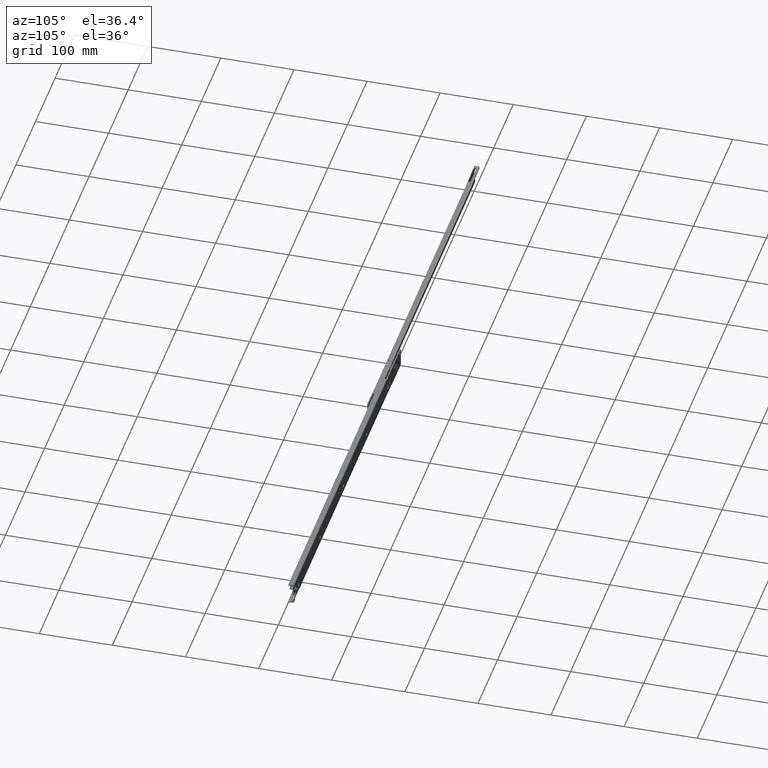
[diagram: clean part render]
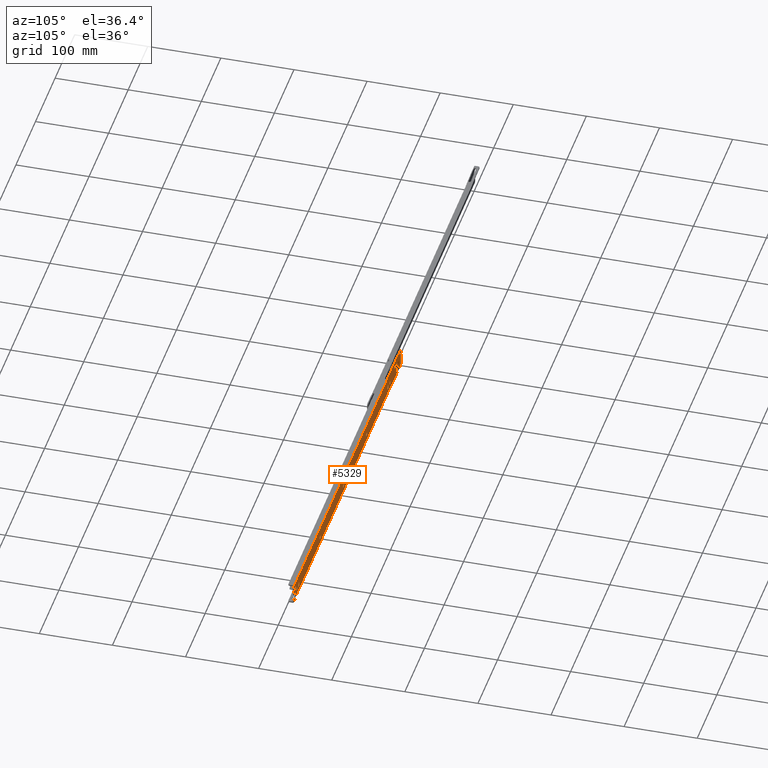
[diagram: same view with one face highlighted and labeled with its STEP entity id]
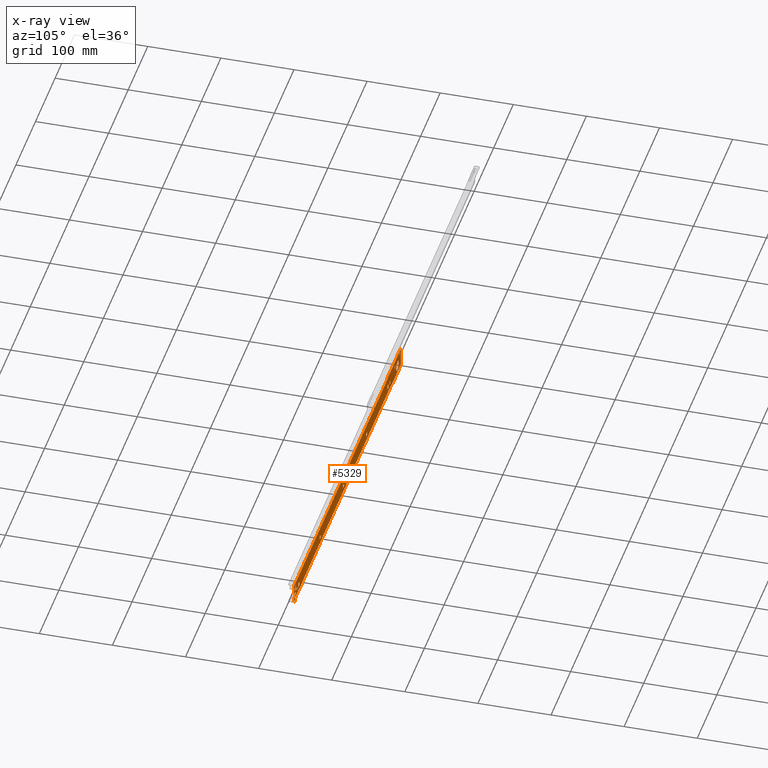
[diagram: x-ray of the same camera — body ghosted, the highlighted face saturated]
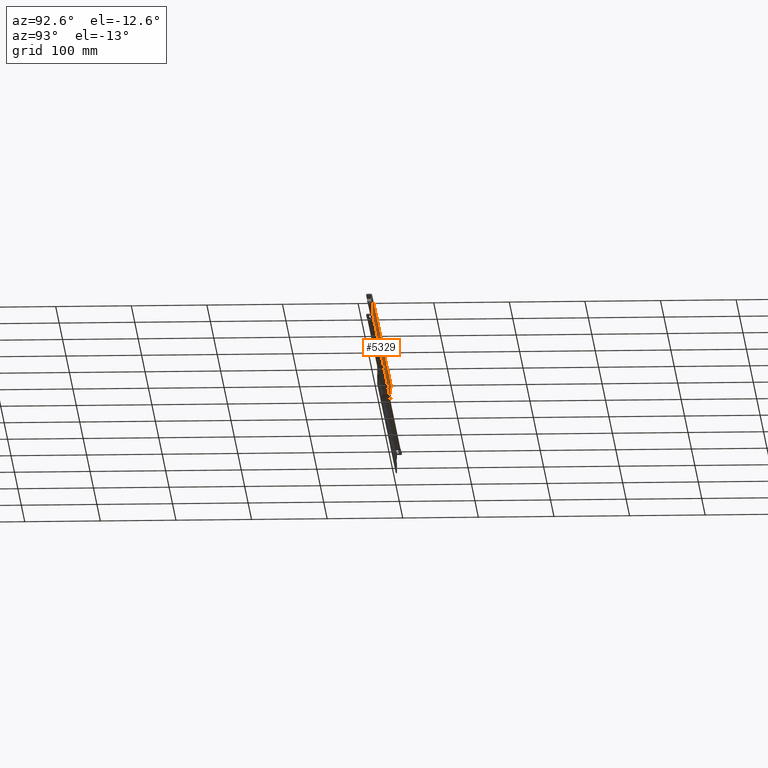
[diagram: same view with one face highlighted and labeled with its STEP entity id]
A machine part, auxiliary view. The second image highlights one B-rep face of the part: STEP entity #5329.
The next image is the same camera in x-ray: the body ghosted, the highlighted face saturated — about 0% of this face is hidden behind the body in this view.
A second angle (auxiliary view) of the same face is appended — the face is thin or edge-on in the first view.
In plain terms, the highlighted face is a freeform B-spline surface patch.
Its self-contained STEP definition (entity closure, byte-faithful):
#721=CARTESIAN_POINT('',(364.618561086811610,12.499999999983149,11.202092794943010));
#722=VERTEX_POINT('',#721);
#723=CARTESIAN_POINT('',(367.0,12.500000000000000,9.100000000000000));
#724=VERTEX_POINT('',#723);
#725=CARTESIAN_POINT('',(364.618561086811610,12.499999999983151,11.202092794943010));
#726=CARTESIAN_POINT('',(364.881523359753260,12.500000000000000,9.100000000000000));
#727=CARTESIAN_POINT('',(367.0,12.500000000000000,9.100000000000000));
#735=(BOUNDED_CURVE()B_SPLINE_CURVE(2,(#725,#726,#727),.UNSPECIFIED.,.F.,.U.)B_SPLINE_CURVE_WITH_KNOTS((3,3),(0.271473928979697,0.500000000000000),.UNSPECIFIED.)CURVE()GEOMETRIC_REPRESENTATION_ITEM()RATIONAL_B_SPLINE_CURVE((0.954005430257261,0.732265053904287,1.0))REPRESENTATION_ITEM(''));
#736=EDGE_CURVE('',#722,#724,#735,.T.);
#777=CARTESIAN_POINT('',(369.399908617294270,12.499999997686860,11.520943701425679));
#778=VERTEX_POINT('',#777);
#784=CARTESIAN_POINT('',(367.0,12.500000000000000,9.100000000000000));
#785=CARTESIAN_POINT('',(369.399999999999980,12.499999999999998,9.100000000000000));
#786=CARTESIAN_POINT('',(369.399999999999980,12.500000000000000,11.500000000000000));
#787=CARTESIAN_POINT('',(369.399999999999980,12.499999999999998,11.510472058182025));
#788=CARTESIAN_POINT('',(369.399908617294270,12.499999997686869,11.520943701425679));
#796=(BOUNDED_CURVE()B_SPLINE_CURVE(2,(#784,#785,#786,#787,#788),.UNSPECIFIED.,.F.,.U.)B_SPLINE_CURVE_WITH_KNOTS((3,2,3),(0.500000000000000,0.750000000000000,0.751539896714681),.UNSPECIFIED.)CURVE()GEOMETRIC_REPRESENTATION_ITEM()RATIONAL_B_SPLINE_CURVE((1.0,0.707106781186547,1.0,0.998195898778387,0.996414022593128))REPRESENTATION_ITEM(''));
#797=EDGE_CURVE('',#724,#778,#796,.T.);
#824=CARTESIAN_POINT('',(367.0,12.500000000000000,13.900000000000000));
#825=VERTEX_POINT('',#824);
#826=CARTESIAN_POINT('',(367.0,12.500000000000000,13.900000000000000));
#827=CARTESIAN_POINT('',(364.599999999999970,12.499999999999998,13.899999999999997));
#828=CARTESIAN_POINT('',(364.600000000000020,12.500000000000000,11.500000000000000));
#829=CARTESIAN_POINT('',(364.599999999999970,12.499999999999998,11.350468173855360));
#830=CARTESIAN_POINT('',(364.618561086811610,12.499999999983149,11.202092794943010));
#838=(BOUNDED_CURVE()B_SPLINE_CURVE(2,(#826,#827,#828,#829,#830),.UNSPECIFIED.,.F.,.U.)B_SPLINE_CURVE_WITH_KNOTS((3,2,3),(0.0,0.250000000000000,0.271473928979697),.UNSPECIFIED.)CURVE()GEOMETRIC_REPRESENTATION_ITEM()RATIONAL_B_SPLINE_CURVE((1.0,0.707106781186547,1.0,0.974841727282260,0.954005430257261))REPRESENTATION_ITEM(''));
#839=EDGE_CURVE('',#825,#722,#838,.T.);
#841=CARTESIAN_POINT('',(369.399908617294270,12.499999997686869,11.520943701425679));
#842=CARTESIAN_POINT('',(369.379146873284410,12.500000000000000,13.899999999999999));
#843=CARTESIAN_POINT('',(367.0,12.500000000000000,13.900000000000000));
#851=(BOUNDED_CURVE()B_SPLINE_CURVE(2,(#841,#842,#843),.UNSPECIFIED.,.F.,.U.)B_SPLINE_CURVE_WITH_KNOTS((3,3),(0.751539896714681,1.0),.UNSPECIFIED.)CURVE()GEOMETRIC_REPRESENTATION_ITEM()RATIONAL_B_SPLINE_CURVE((0.996414022593128,0.708910882408160,1.0))REPRESENTATION_ITEM(''));
#852=EDGE_CURVE('',#778,#825,#851,.T.);
#907=CARTESIAN_POINT('',(246.118561086811610,12.499999999983149,11.202092794943010));
#908=VERTEX_POINT('',#907);
#909=CARTESIAN_POINT('',(248.500000000000000,12.500000000000000,9.100000000000000));
#910=VERTEX_POINT('',#909);
#911=CARTESIAN_POINT('',(246.118561086811580,12.499999999983155,11.202092794943013));
#912=CARTESIAN_POINT('',(246.381523359753460,12.500000000000000,9.100000000000000));
#913=CARTESIAN_POINT('',(248.500000000000000,12.500000000000000,9.100000000000000));
#921=(BOUNDED_CURVE()B_SPLINE_CURVE(2,(#911,#912,#913),.UNSPECIFIED.,.F.,.U.)B_SPLINE_CURVE_WITH_KNOTS((3,3),(0.271473928979697,0.500000000000000),.UNSPECIFIED.)CURVE()GEOMETRIC_REPRESENTATION_ITEM()RATIONAL_B_SPLINE_CURVE((0.954005430257262,0.732265053904287,1.0))REPRESENTATION_ITEM(''));
#922=EDGE_CURVE('',#908,#910,#921,.T.);
#963=CARTESIAN_POINT('',(250.899908617294300,12.499999997686871,11.520943701425679));
#964=VERTEX_POINT('',#963);
#970=CARTESIAN_POINT('',(248.500000000000000,12.500000000000000,9.100000000000000));
#971=CARTESIAN_POINT('',(250.900000000000060,12.499999999999998,9.100000000000000));
#972=CARTESIAN_POINT('',(250.900000000000010,12.500000000000000,11.500000000000000));
#973=CARTESIAN_POINT('',(250.900000000000010,12.499999999999998,11.510472058182025));
#974=CARTESIAN_POINT('',(250.899908617294240,12.499999997686878,11.520943701425679));
#982=(BOUNDED_CURVE()B_SPLINE_CURVE(2,(#970,#971,#972,#973,#974),.UNSPECIFIED.,.F.,.U.)B_SPLINE_CURVE_WITH_KNOTS((3,2,3),(0.500000000000000,0.750000000000000,0.751539896714681),.UNSPECIFIED.)CURVE()GEOMETRIC_REPRESENTATION_ITEM()RATIONAL_B_SPLINE_CURVE((1.0,0.707106781186547,1.0,0.998195898778387,0.996414022593128))REPRESENTATION_ITEM(''));
#983=EDGE_CURVE('',#910,#964,#982,.T.);
#1010=CARTESIAN_POINT('',(248.500000000000000,12.500000000000000,13.900000000000000));
#1011=VERTEX_POINT('',#1010);
#1012=CARTESIAN_POINT('',(248.500000000000000,12.500000000000000,13.900000000000000));
#1013=CARTESIAN_POINT('',(246.100000000000110,12.499999999999998,13.899999999999997));
#1014=CARTESIAN_POINT('',(246.099999999999990,12.500000000000000,11.500000000000000));
#1015=CARTESIAN_POINT('',(246.099999999999990,12.500000000000005,11.350468173855354));
#1016=CARTESIAN_POINT('',(246.118561086811580,12.499999999983155,11.202092794943013));
#1024=(BOUNDED_CURVE()B_SPLINE_CURVE(2,(#1012,#1013,#1014,#1015,#1016),.UNSPECIFIED.,.F.,.U.)B_SPLINE_CURVE_WITH_KNOTS((3,2,3),(0.0,0.250000000000000,0.271473928979697),.UNSPECIFIED.)CURVE()GEOMETRIC_REPRESENTATION_ITEM()RATIONAL_B_SPLINE_CURVE((1.0,0.707106781186547,1.0,0.974841727282260,0.954005430257262))REPRESENTATION_ITEM(''));
#1025=EDGE_CURVE('',#1011,#908,#1024,.T.);
#1027=CARTESIAN_POINT('',(250.899908617294220,12.499999997686874,11.520943701425685));
#1028=CARTESIAN_POINT('',(250.879146873284410,12.499999999999998,13.899999999999997));
#1029=CARTESIAN_POINT('',(248.500000000000000,12.500000000000000,13.900000000000000));
#1037=(BOUNDED_CURVE()B_SPLINE_CURVE(2,(#1027,#1028,#1029),.UNSPECIFIED.,.F.,.U.)B_SPLINE_CURVE_WITH_KNOTS((3,3),(0.751539896714681,1.0),.UNSPECIFIED.)CURVE()GEOMETRIC_REPRESENTATION_ITEM()RATIONAL_B_SPLINE_CURVE((0.996414022593127,0.708910882408160,1.0))REPRESENTATION_ITEM(''));
#1038=EDGE_CURVE('',#964,#1011,#1037,.T.);
#1093=CARTESIAN_POINT('',(127.618561086811600,12.499999999983160,11.202092794943020));
#1094=VERTEX_POINT('',#1093);
#1095=CARTESIAN_POINT('',(130.0,12.500000000000000,9.100000000000000));
#1096=VERTEX_POINT('',#1095);
#1097=CARTESIAN_POINT('',(127.618561086811680,12.499999999983167,11.202092794943013));
#1098=CARTESIAN_POINT('',(127.881523359753330,12.500000000000000,9.099999999999998));
#1099=CARTESIAN_POINT('',(130.0,12.500000000000000,9.100000000000000));
#1107=(BOUNDED_CURVE()B_SPLINE_CURVE(2,(#1097,#1098,#1099),.UNSPECIFIED.,.F.,.U.)B_SPLINE_CURVE_WITH_KNOTS((3,3),(0.271473928979697,0.500000000000000),.UNSPECIFIED.)CURVE()GEOMETRIC_REPRESENTATION_ITEM()RATIONAL_B_SPLINE_CURVE((0.954005430257262,0.732265053904287,1.0))REPRESENTATION_ITEM(''));
#1108=EDGE_CURVE('',#1094,#1096,#1107,.T.);
#1149=CARTESIAN_POINT('',(132.399908617294300,12.499999997686871,11.520943701425679));
#1150=VERTEX_POINT('',#1149);
#1156=CARTESIAN_POINT('',(130.0,12.500000000000000,9.100000000000000));
#1157=CARTESIAN_POINT('',(132.400000000000010,12.499999999999998,9.100000000000000));
#1158=CARTESIAN_POINT('',(132.400000000000010,12.500000000000000,11.500000000000000));
#1159=CARTESIAN_POINT('',(132.400000000000010,12.499999999999998,11.510472058182025));
#1160=CARTESIAN_POINT('',(132.399908617294270,12.499999997686878,11.520943701425679));
#1168=(BOUNDED_CURVE()B_SPLINE_CURVE(2,(#1156,#1157,#1158,#1159,#1160),.UNSPECIFIED.,.F.,.U.)B_SPLINE_CURVE_WITH_KNOTS((3,2,3),(0.500000000000000,0.750000000000000,0.751539896714681),.UNSPECIFIED.)CURVE()GEOMETRIC_REPRESENTATION_ITEM()RATIONAL_B_SPLINE_CURVE((1.0,0.707106781186547,1.0,0.998195898778387,0.996414022593128))REPRESENTATION_ITEM(''));
#1169=EDGE_CURVE('',#1096,#1150,#1168,.T.);
#1196=CARTESIAN_POINT('',(130.0,12.500000000000000,13.900000000000000));
#1197=VERTEX_POINT('',#1196);
#1198=CARTESIAN_POINT('',(130.0,12.500000000000000,13.900000000000000));
#1199=CARTESIAN_POINT('',(127.599999999999990,12.499999999999998,13.899999999999997));
#1200=CARTESIAN_POINT('',(127.599999999999990,12.500000000000000,11.500000000000000));
#1201=CARTESIAN_POINT('',(127.599999999999950,12.500000000000005,11.350468173855354));
#1202=CARTESIAN_POINT('',(127.618561086811680,12.499999999983167,11.202092794943013));
#1210=(BOUNDED_CURVE()B_SPLINE_CURVE(2,(#1198,#1199,#1200,#1201,#1202),.UNSPECIFIED.,.F.,.U.)B_SPLINE_CURVE_WITH_KNOTS((3,2,3),(0.0,0.250000000000000,0.271473928979697),.UNSPECIFIED.)CURVE()GEOMETRIC_REPRESENTATION_ITEM()RATIONAL_B_SPLINE_CURVE((1.0,0.707106781186547,1.0,0.974841727282260,0.954005430257262))REPRESENTATION_ITEM(''));
#1211=EDGE_CURVE('',#1197,#1094,#1210,.T.);
#1213=CARTESIAN_POINT('',(132.399908617294330,12.499999997686874,11.520943701425685));
#1214=CARTESIAN_POINT('',(132.379146873284380,12.499999999999998,13.899999999999997));
#1215=CARTESIAN_POINT('',(130.0,12.500000000000000,13.900000000000000));
#1223=(BOUNDED_CURVE()B_SPLINE_CURVE(2,(#1213,#1214,#1215),.UNSPECIFIED.,.F.,.U.)B_SPLINE_CURVE_WITH_KNOTS((3,3),(0.751539896714681,1.0),.UNSPECIFIED.)CURVE()GEOMETRIC_REPRESENTATION_ITEM()RATIONAL_B_SPLINE_CURVE((0.996414022593127,0.708910882408160,1.0))REPRESENTATION_ITEM(''));
#1224=EDGE_CURVE('',#1150,#1197,#1223,.T.);
#1681=CARTESIAN_POINT('',(8.618561086811564,12.499999999982940,11.202092794943010));
#1682=VERTEX_POINT('',#1681);
#1683=CARTESIAN_POINT('',(11.0,12.499999999999719,9.100000000000025));
#1684=VERTEX_POINT('',#1683);
#1685=CARTESIAN_POINT('',(8.618561086811564,12.499999999982938,11.202092794943006));
#1686=CARTESIAN_POINT('',(8.881523359753354,12.499999999999718,9.100000000000023));
#1687=CARTESIAN_POINT('',(11.0,12.499999999999719,9.100000000000025));
#1695=(BOUNDED_CURVE()B_SPLINE_CURVE(2,(#1685,#1686,#1687),.UNSPECIFIED.,.F.,.U.)B_SPLINE_CURVE_WITH_KNOTS((3,3),(0.271473928979697,0.500000000000000),.UNSPECIFIED.)CURVE()GEOMETRIC_REPRESENTATION_ITEM()RATIONAL_B_SPLINE_CURVE((0.954005430257261,0.732265053904287,1.0))REPRESENTATION_ITEM(''));
#1696=EDGE_CURVE('',#1682,#1684,#1695,.T.);
#1737=CARTESIAN_POINT('',(13.399908617294310,12.499999997686659,11.520943701425679));
#1738=VERTEX_POINT('',#1737);
#1744=CARTESIAN_POINT('',(11.0,12.499999999999719,9.100000000000025));
#1745=CARTESIAN_POINT('',(13.399999999999975,12.499999999999718,9.100000000000025));
#1746=CARTESIAN_POINT('',(13.399999999999970,12.499999999999719,11.500000000000000));
#1747=CARTESIAN_POINT('',(13.399999999999977,12.499999999999716,11.510472058182025));
#1748=CARTESIAN_POINT('',(13.399908617294312,12.499999997686658,11.520943701425679));
#1756=(BOUNDED_CURVE()B_SPLINE_CURVE(2,(#1744,#1745,#1746,#1747,#1748),.UNSPECIFIED.,.F.,.U.)B_SPLINE_CURVE_WITH_KNOTS((3,2,3),(0.500000000000000,0.750000000000000,0.751539896714681),.UNSPECIFIED.)CURVE()GEOMETRIC_REPRESENTATION_ITEM()RATIONAL_B_SPLINE_CURVE((1.0,0.707106781186548,1.0,0.998195898778387,0.996414022593128))REPRESENTATION_ITEM(''));
#1757=EDGE_CURVE('',#1684,#1738,#1756,.T.);
#1784=CARTESIAN_POINT('',(11.0,12.499999999999719,13.899999999999981));
#1785=VERTEX_POINT('',#1784);
#1786=CARTESIAN_POINT('',(11.0,12.499999999999719,13.899999999999981));
#1787=CARTESIAN_POINT('',(8.600000000000025,12.499999999999718,13.899999999999974));
#1788=CARTESIAN_POINT('',(8.600000000000025,12.499999999999719,11.500000000000000));
#1789=CARTESIAN_POINT('',(8.600000000000025,12.499999999999718,11.350468173855356));
#1790=CARTESIAN_POINT('',(8.618561086811564,12.499999999982938,11.202092794943006));
#1798=(BOUNDED_CURVE()B_SPLINE_CURVE(2,(#1786,#1787,#1788,#1789,#1790),.UNSPECIFIED.,.F.,.U.)B_SPLINE_CURVE_WITH_KNOTS((3,2,3),(0.0,0.250000000000000,0.271473928979697),.UNSPECIFIED.)CURVE()GEOMETRIC_REPRESENTATION_ITEM()RATIONAL_B_SPLINE_CURVE((1.0,0.707106781186548,1.0,0.974841727282260,0.954005430257261))REPRESENTATION_ITEM(''));
#1799=EDGE_CURVE('',#1785,#1682,#1798,.T.);
#1801=CARTESIAN_POINT('',(13.399908617294308,12.499999997686665,11.520943701425686));
#1802=CARTESIAN_POINT('',(13.379146873284355,12.499999999999719,13.899999999999974));
#1803=CARTESIAN_POINT('',(11.0,12.499999999999719,13.899999999999981));
#1811=(BOUNDED_CURVE()B_SPLINE_CURVE(2,(#1801,#1802,#1803),.UNSPECIFIED.,.F.,.U.)B_SPLINE_CURVE_WITH_KNOTS((3,3),(0.751539896714681,1.0),.UNSPECIFIED.)CURVE()GEOMETRIC_REPRESENTATION_ITEM()RATIONAL_B_SPLINE_CURVE((0.996414022593127,0.708910882408160,1.0))REPRESENTATION_ITEM(''));
#1812=EDGE_CURVE('',#1738,#1785,#1811,.T.);
#1867=CARTESIAN_POINT('',(-16.381438913188461,12.499999999982940,19.202092794943010));
#1868=VERTEX_POINT('',#1867);
#1869=CARTESIAN_POINT('',(-14.0,12.499999999999719,17.100000000000001));
#1870=VERTEX_POINT('',#1869);
#1871=CARTESIAN_POINT('',(-16.381438913188457,12.499999999982938,19.202092794943006));
#1872=CARTESIAN_POINT('',(-16.118476640246669,12.499999999999719,17.100000000000001));
#1873=CARTESIAN_POINT('',(-14.0,12.499999999999719,17.100000000000001));
#1881=(BOUNDED_CURVE()B_SPLINE_CURVE(2,(#1871,#1872,#1873),.UNSPECIFIED.,.F.,.U.)B_SPLINE_CURVE_WITH_KNOTS((3,3),(0.271473928979697,0.500000000000000),.UNSPECIFIED.)CURVE()GEOMETRIC_REPRESENTATION_ITEM()RATIONAL_B_SPLINE_CURVE((0.954005430257261,0.732265053904287,1.0))REPRESENTATION_ITEM(''));
#1882=EDGE_CURVE('',#1868,#1870,#1881,.T.);
#1923=CARTESIAN_POINT('',(-11.600091382705671,12.499999997686659,19.520943701425679));
#1924=VERTEX_POINT('',#1923);
#1930=CARTESIAN_POINT('',(-14.0,12.499999999999719,17.100000000000001));
#1931=CARTESIAN_POINT('',(-11.600000000000003,12.499999999999719,17.099999999999998));
#1932=CARTESIAN_POINT('',(-11.600000000000000,12.499999999999719,19.500000000000000));
#1933=CARTESIAN_POINT('',(-11.600000000000007,12.499999999999716,19.510472058182021));
#1934=CARTESIAN_POINT('',(-11.600091382705667,12.499999997686658,19.520943701425676));
#1942=(BOUNDED_CURVE()B_SPLINE_CURVE(2,(#1930,#1931,#1932,#1933,#1934),.UNSPECIFIED.,.F.,.U.)B_SPLINE_CURVE_WITH_KNOTS((3,2,3),(0.500000000000000,0.750000000000000,0.751539896714681),.UNSPECIFIED.)CURVE()GEOMETRIC_REPRESENTATION_ITEM()RATIONAL_B_SPLINE_CURVE((1.0,0.707106781186547,1.0,0.998195898778387,0.996414022593128))REPRESENTATION_ITEM(''));
#1943=EDGE_CURVE('',#1870,#1924,#1942,.T.);
#1970=CARTESIAN_POINT('',(-14.0,12.499999999999719,21.899999999999999));
#1971=VERTEX_POINT('',#1970);
#1972=CARTESIAN_POINT('',(-14.0,12.499999999999719,21.899999999999999));
#1973=CARTESIAN_POINT('',(-16.400000000000002,12.499999999999719,21.900000000000002));
#1974=CARTESIAN_POINT('',(-16.399999999999999,12.499999999999719,19.500000000000000));
#1975=CARTESIAN_POINT('',(-16.399999999999999,12.499999999999718,19.350468173855354));
#1976=CARTESIAN_POINT('',(-16.381438913188457,12.499999999982938,19.202092794943006));
#1984=(BOUNDED_CURVE()B_SPLINE_CURVE(2,(#1972,#1973,#1974,#1975,#1976),.UNSPECIFIED.,.F.,.U.)B_SPLINE_CURVE_WITH_KNOTS((3,2,3),(0.0,0.250000000000000,0.271473928979697),.UNSPECIFIED.)CURVE()GEOMETRIC_REPRESENTATION_ITEM()RATIONAL_B_SPLINE_CURVE((1.0,0.707106781186547,1.0,0.974841727282260,0.954005430257261))REPRESENTATION_ITEM(''));
#1985=EDGE_CURVE('',#1971,#1868,#1984,.T.);
#1987=CARTESIAN_POINT('',(-11.600091382705671,12.499999997686661,19.520943701425683));
#1988=CARTESIAN_POINT('',(-11.620853126715618,12.499999999999721,21.900000000000002));
#1989=CARTESIAN_POINT('',(-14.0,12.499999999999719,21.899999999999999));
#1997=(BOUNDED_CURVE()B_SPLINE_CURVE(2,(#1987,#1988,#1989),.UNSPECIFIED.,.F.,.U.)B_SPLINE_CURVE_WITH_KNOTS((3,3),(0.751539896714681,1.0),.UNSPECIFIED.)CURVE()GEOMETRIC_REPRESENTATION_ITEM()RATIONAL_B_SPLINE_CURVE((0.996414022593127,0.708910882408160,1.0))REPRESENTATION_ITEM(''));
#1998=EDGE_CURVE('',#1924,#1971,#1997,.T.);
#2057=CARTESIAN_POINT('',(-41.187766668733389,12.499999999999719,23.656559930865750));
#2058=VERTEX_POINT('',#2057);
#2059=CARTESIAN_POINT('',(-39.450000000000003,12.499999999999719,21.699999999999999));
#2060=VERTEX_POINT('',#2059);
#2061=CARTESIAN_POINT('',(-41.187766668733389,12.499999999999719,23.656559930865750));
#2062=CARTESIAN_POINT('',(-41.200000000000010,12.499999999999723,23.553642229820984));
#2063=CARTESIAN_POINT('',(-41.200000000000003,12.499999999999719,23.449999999999999));
#2064=CARTESIAN_POINT('',(-41.200000000000010,12.499999999999719,21.699999999999999));
#2065=CARTESIAN_POINT('',(-39.450000000000003,12.499999999999719,21.699999999999999));
#2073=(BOUNDED_CURVE()B_SPLINE_CURVE(2,(#2061,#2062,#2063,#2064,#2065),.UNSPECIFIED.,.F.,.U.)B_SPLINE_CURVE_WITH_KNOTS((3,2,3),(0.229562469583424,0.250000000000000,0.500000000000000),.UNSPECIFIED.)CURVE()GEOMETRIC_REPRESENTATION_ITEM()RATIONAL_B_SPLINE_CURVE((0.956026746480573,0.976055943726765,1.0,0.707106781186547,1.0))REPRESENTATION_ITEM(''));
#2074=EDGE_CURVE('',#2058,#2060,#2073,.T.);
#2115=CARTESIAN_POINT('',(-37.703264103174021,12.499999999999719,23.343165049072990));
#2116=VERTEX_POINT('',#2115);
#2122=CARTESIAN_POINT('',(-39.450000000000003,12.499999999999719,21.699999999999999));
#2123=CARTESIAN_POINT('',(-37.803764395645103,12.499999999999721,21.699999999999999));
#2124=CARTESIAN_POINT('',(-37.703264103174021,12.499999999999726,23.343165049072990));
#2132=(BOUNDED_CURVE()B_SPLINE_CURVE(2,(#2122,#2123,#2124),.UNSPECIFIED.,.F.,.U.)B_SPLINE_CURVE_WITH_KNOTS((3,3),(0.500000000000000,0.739332960910181),.UNSPECIFIED.)CURVE()GEOMETRIC_REPRESENTATION_ITEM()RATIONAL_B_SPLINE_CURVE((1.0,0.719603994843451,0.976072038818929))REPRESENTATION_ITEM(''));
#2133=EDGE_CURVE('',#2060,#2116,#2132,.T.);
#2156=CARTESIAN_POINT('',(-39.450000000000003,12.499999999999719,25.199999999999999));
#2157=VERTEX_POINT('',#2156);
#2158=CARTESIAN_POINT('',(-39.450000000000003,12.499999999999719,25.199999999999999));
#2159=CARTESIAN_POINT('',(-41.004305383996090,12.499999999999721,25.200000000000003));
#2160=CARTESIAN_POINT('',(-41.187766668733389,12.499999999999719,23.656559930865750));
#2168=(BOUNDED_CURVE()B_SPLINE_CURVE(2,(#2158,#2159,#2160),.UNSPECIFIED.,.F.,.U.)B_SPLINE_CURVE_WITH_KNOTS((3,3),(0.0,0.229562469583424),.UNSPECIFIED.)CURVE()GEOMETRIC_REPRESENTATION_ITEM()RATIONAL_B_SPLINE_CURVE((1.0,0.731050837459783,0.956026746480573))REPRESENTATION_ITEM(''));
#2169=EDGE_CURVE('',#2157,#2058,#2168,.T.);
#2171=CARTESIAN_POINT('',(-37.703264103174014,12.499999999999725,23.343165049072990));
#2172=CARTESIAN_POINT('',(-37.700000000000010,12.499999999999721,23.396532657467567));
#2173=CARTESIAN_POINT('',(-37.700000000000003,12.499999999999719,23.449999999999999));
#2174=CARTESIAN_POINT('',(-37.700000000000003,12.499999999999719,25.200000000000006));
#2175=CARTESIAN_POINT('',(-39.450000000000003,12.499999999999719,25.199999999999999));
#2183=(BOUNDED_CURVE()B_SPLINE_CURVE(2,(#2171,#2172,#2173,#2174,#2175),.UNSPECIFIED.,.F.,.U.)B_SPLINE_CURVE_WITH_KNOTS((3,2,3),(0.739332960910182,0.750000000000000,1.0),.UNSPECIFIED.)CURVE()GEOMETRIC_REPRESENTATION_ITEM()RATIONAL_B_SPLINE_CURVE((0.976072038818930,0.987502786343097,1.0,0.707106781186547,1.0))REPRESENTATION_ITEM(''));
#2184=EDGE_CURVE('',#2116,#2157,#2183,.T.);
#2239=CARTESIAN_POINT('',(483.618561086811610,12.499999999982940,11.202092794943010));
#2240=VERTEX_POINT('',#2239);
#2241=CARTESIAN_POINT('',(486.0,12.499999999999719,9.100000000000025));
#2242=VERTEX_POINT('',#2241);
#2243=CARTESIAN_POINT('',(483.618561086811550,12.499999999982933,11.202092794943011));
#2244=CARTESIAN_POINT('',(483.881523359753200,12.499999999999716,9.100000000000025));
#2245=CARTESIAN_POINT('',(486.0,12.499999999999719,9.100000000000025));
#2253=(BOUNDED_CURVE()B_SPLINE_CURVE(2,(#2243,#2244,#2245),.UNSPECIFIED.,.F.,.U.)B_SPLINE_CURVE_WITH_KNOTS((3,3),(0.271473928979697,0.500000000000000),.UNSPECIFIED.)CURVE()GEOMETRIC_REPRESENTATION_ITEM()RATIONAL_B_SPLINE_CURVE((0.954005430257262,0.732265053904287,1.0))REPRESENTATION_ITEM(''));
#2254=EDGE_CURVE('',#2240,#2242,#2253,.T.);
#2295=CARTESIAN_POINT('',(488.399908617294270,12.499999997686681,11.520943701425679));
#2296=VERTEX_POINT('',#2295);
#2302=CARTESIAN_POINT('',(486.0,12.499999999999719,9.100000000000025));
#2303=CARTESIAN_POINT('',(488.399999999999810,12.499999999999718,9.100000000000025));
#2304=CARTESIAN_POINT('',(488.399999999999920,12.499999999999719,11.500000000000000));
#2305=CARTESIAN_POINT('',(488.399999999999860,12.499999999999716,11.510472058182025));
#2306=CARTESIAN_POINT('',(488.399908617294270,12.499999997686679,11.520943701425679));
#2314=(BOUNDED_CURVE()B_SPLINE_CURVE(2,(#2302,#2303,#2304,#2305,#2306),.UNSPECIFIED.,.F.,.U.)B_SPLINE_CURVE_WITH_KNOTS((3,2,3),(0.500000000000000,0.750000000000000,0.751539896714681),.UNSPECIFIED.)CURVE()GEOMETRIC_REPRESENTATION_ITEM()RATIONAL_B_SPLINE_CURVE((1.0,0.707106781186548,1.0,0.998195898778387,0.996414022593128))REPRESENTATION_ITEM(''));
#2315=EDGE_CURVE('',#2242,#2296,#2314,.T.);
#2342=CARTESIAN_POINT('',(486.0,12.499999999999719,13.899999999999981));
#2343=VERTEX_POINT('',#2342);
#2344=CARTESIAN_POINT('',(486.0,12.499999999999719,13.899999999999981));
#2345=CARTESIAN_POINT('',(483.600000000000020,12.499999999999718,13.899999999999974));
#2346=CARTESIAN_POINT('',(483.600000000000020,12.499999999999719,11.500000000000000));
#2347=CARTESIAN_POINT('',(483.599999999999970,12.499999999999716,11.350468173855365));
#2348=CARTESIAN_POINT('',(483.618561086811550,12.499999999982933,11.202092794943011));
#2356=(BOUNDED_CURVE()B_SPLINE_CURVE(2,(#2344,#2345,#2346,#2347,#2348),.UNSPECIFIED.,.F.,.U.)B_SPLINE_CURVE_WITH_KNOTS((3,2,3),(0.0,0.250000000000000,0.271473928979697),.UNSPECIFIED.)CURVE()GEOMETRIC_REPRESENTATION_ITEM()RATIONAL_B_SPLINE_CURVE((1.0,0.707106781186548,1.0,0.974841727282261,0.954005430257262))REPRESENTATION_ITEM(''));
#2357=EDGE_CURVE('',#2343,#2240,#2356,.T.);
#2359=CARTESIAN_POINT('',(488.399908617294270,12.499999997686686,11.520943701425686));
#2360=CARTESIAN_POINT('',(488.379146873284130,12.499999999999719,13.899999999999974));
#2361=CARTESIAN_POINT('',(486.0,12.499999999999719,13.899999999999981));
#2369=(BOUNDED_CURVE()B_SPLINE_CURVE(2,(#2359,#2360,#2361),.UNSPECIFIED.,.F.,.U.)B_SPLINE_CURVE_WITH_KNOTS((3,3),(0.751539896714681,1.0),.UNSPECIFIED.)CURVE()GEOMETRIC_REPRESENTATION_ITEM()RATIONAL_B_SPLINE_CURVE((0.996414022593127,0.708910882408160,1.0))REPRESENTATION_ITEM(''));
#2370=EDGE_CURVE('',#2296,#2343,#2369,.T.);
#2453=CARTESIAN_POINT('',(-23.046570611235769,12.499999999999771,6.225133462752023));
#2454=VERTEX_POINT('',#2453);
#2468=CARTESIAN_POINT('',(-28.0,12.499999999999760,4.263932022500369));
#2469=VERTEX_POINT('',#2468);
#2470=CARTESIAN_POINT('',(-28.0,12.499999999999760,4.263932022500369));
#2471=CARTESIAN_POINT('',(-25.135038013769787,12.499999999999755,4.263932022500369));
#2472=CARTESIAN_POINT('',(-23.046570611235765,12.499999999999762,6.225133462752023));
#2480=(BOUNDED_CURVE()B_SPLINE_CURVE(2,(#2470,#2471,#2472),.UNSPECIFIED.,.F.,.U.)B_SPLINE_CURVE_WITH_KNOTS((3,3),(0.500000000000000,0.620259312856335),.UNSPECIFIED.)CURVE()GEOMETRIC_REPRESENTATION_ITEM()RATIONAL_B_SPLINE_CURVE((1.0,0.859107451060857,0.853764031097704))REPRESENTATION_ITEM(''));
#2481=EDGE_CURVE('',#2469,#2454,#2480,.T.);
#2483=CARTESIAN_POINT('',(-28.0,12.499999999999760,18.736067977499630));
#2484=VERTEX_POINT('',#2483);
#2485=CARTESIAN_POINT('',(-28.0,12.499999999999760,18.736067977499630));
#2486=CARTESIAN_POINT('',(-35.236067977499637,12.499999999999758,18.736067977499641));
#2487=CARTESIAN_POINT('',(-35.236067977499630,12.499999999999760,11.500000000000000));
#2488=CARTESIAN_POINT('',(-35.236067977499637,12.499999999999758,4.263932022500369));
#2489=CARTESIAN_POINT('',(-28.0,12.499999999999760,4.263932022500369));
#2497=(BOUNDED_CURVE()B_SPLINE_CURVE(2,(#2485,#2486,#2487,#2488,#2489),.UNSPECIFIED.,.F.,.U.)B_SPLINE_CURVE_WITH_KNOTS((3,2,3),(0.0,0.250000000000000,0.500000000000000),.UNSPECIFIED.)CURVE()GEOMETRIC_REPRESENTATION_ITEM()RATIONAL_B_SPLINE_CURVE((1.0,0.707106781186548,1.0,0.707106781186548,1.0))REPRESENTATION_ITEM(''));
#2498=EDGE_CURVE('',#2484,#2469,#2497,.T.);
#2500=CARTESIAN_POINT('',(-22.725133493405469,12.499999999999771,16.453429361637529));
#2501=VERTEX_POINT('',#2500);
#2502=CARTESIAN_POINT('',(-22.725133493405476,12.499999999999762,16.453429361637525));
#2503=CARTESIAN_POINT('',(-24.868673770026060,12.499999999999760,18.736067977499637));
#2504=CARTESIAN_POINT('',(-28.0,12.499999999999760,18.736067977499630));
#2512=(BOUNDED_CURVE()B_SPLINE_CURVE(2,(#2502,#2503,#2504),.UNSPECIFIED.,.F.,.U.)B_SPLINE_CURVE_WITH_KNOTS((3,3),(0.870259312906776,1.0),.UNSPECIFIED.)CURVE()GEOMETRIC_REPRESENTATION_ITEM()RATIONAL_B_SPLINE_CURVE((0.853764031093222,0.847999330184787,1.0))REPRESENTATION_ITEM(''));
#2513=EDGE_CURVE('',#2501,#2484,#2512,.T.);
#2596=CARTESIAN_POINT('',(-23.046570611235776,12.499999999999760,6.225133462752023));
#2597=CARTESIAN_POINT('',(-20.763932022500367,12.499999999999762,8.368673768590401));
#2598=CARTESIAN_POINT('',(-20.763932022500370,12.499999999999760,11.500000000000000));
#2599=CARTESIAN_POINT('',(-20.763932022500370,12.499999999999758,14.364961987628995));
#2600=CARTESIAN_POINT('',(-22.725133493405480,12.499999999999764,16.453429361637529));
#2608=(BOUNDED_CURVE()B_SPLINE_CURVE(2,(#2596,#2597,#2598,#2599,#2600),.UNSPECIFIED.,.F.,.U.)B_SPLINE_CURVE_WITH_KNOTS((3,2,3),(0.620259312856334,0.750000000000000,0.870259312906777),.UNSPECIFIED.)CURVE()GEOMETRIC_REPRESENTATION_ITEM()RATIONAL_B_SPLINE_CURVE((0.853764031097704,0.847999330125690,1.0,0.859107451001760,0.853764031093222))REPRESENTATION_ITEM(''));
#2609=EDGE_CURVE('',#2454,#2501,#2608,.T.);
#2930=CARTESIAN_POINT('',(18.600000000000001,12.499999999999719,10.500000000000000));
#2931=VERTEX_POINT('',#2930);
#2937=CARTESIAN_POINT('',(18.600000000000001,12.499999999999719,12.500000000000000));
#2938=VERTEX_POINT('',#2937);
#2939=CARTESIAN_POINT('',(18.600000000000001,12.499999999999719,10.500000000000000));
#2940=CARTESIAN_POINT('',(18.600000000000001,12.499999999999719,12.500000000000000));
#2941=QUASI_UNIFORM_CURVE('',1,(#2939,#2940),.UNSPECIFIED.,.F.,.U.);
#2942=EDGE_CURVE('',#2931,#2938,#2941,.T.);
#2977=CARTESIAN_POINT('',(23.399999999999999,12.499999999999719,12.500000000000000));
#2978=VERTEX_POINT('',#2977);
#3002=CARTESIAN_POINT('',(23.399999999999981,12.499999999999719,12.500000000000000));
#3003=CARTESIAN_POINT('',(23.399999999999981,12.499999999999718,14.899999999999975));
#3004=CARTESIAN_POINT('',(21.0,12.499999999999719,14.899999999999981));
#3005=CARTESIAN_POINT('',(18.600000000000023,12.499999999999718,14.899999999999975));
#3006=CARTESIAN_POINT('',(18.600000000000030,12.499999999999719,12.500000000000000));
#3014=(BOUNDED_CURVE()B_SPLINE_CURVE(2,(#3002,#3003,#3004,#3005,#3006),.UNSPECIFIED.,.F.,.U.)B_SPLINE_CURVE_WITH_KNOTS((3,2,3),(0.0,0.500000000000000,1.0),.UNSPECIFIED.)CURVE()GEOMETRIC_REPRESENTATION_ITEM()RATIONAL_B_SPLINE_CURVE((1.0,0.707106781186548,1.0,0.707106781186548,1.0))REPRESENTATION_ITEM(''));
#3015=EDGE_CURVE('',#2978,#2938,#3014,.T.);
#3040=CARTESIAN_POINT('',(23.399999999999999,12.499999999999719,10.500000000000000));
#3041=VERTEX_POINT('',#3040);
#3047=CARTESIAN_POINT('',(18.600000000000030,12.499999999999719,10.500000000000000));
#3048=CARTESIAN_POINT('',(18.600000000000023,12.499999999999718,8.100000000000026));
#3049=CARTESIAN_POINT('',(21.0,12.499999999999719,8.100000000000026));
#3050=CARTESIAN_POINT('',(23.399999999999981,12.499999999999718,8.100000000000026));
#3051=CARTESIAN_POINT('',(23.399999999999981,12.499999999999719,10.500000000000000));
#3059=(BOUNDED_CURVE()B_SPLINE_CURVE(2,(#3047,#3048,#3049,#3050,#3051),.UNSPECIFIED.,.F.,.U.)B_SPLINE_CURVE_WITH_KNOTS((3,2,3),(0.0,0.500000000000000,1.0),.UNSPECIFIED.)CURVE()GEOMETRIC_REPRESENTATION_ITEM()RATIONAL_B_SPLINE_CURVE((1.0,0.707106781186548,1.0,0.707106781186548,1.0))REPRESENTATION_ITEM(''));
#3060=EDGE_CURVE('',#2931,#3041,#3059,.T.);
#3087=CARTESIAN_POINT('',(23.399999999999999,12.499999999999719,12.500000000000000));
#3088=CARTESIAN_POINT('',(23.399999999999999,12.499999999999719,10.500000000000000));
#3089=QUASI_UNIFORM_CURVE('',1,(#3087,#3088),.UNSPECIFIED.,.F.,.U.);
#3090=EDGE_CURVE('',#2978,#3041,#3089,.T.);
#3106=CARTESIAN_POINT('',(25.0,12.499999999999719,26.0));
#3107=VERTEX_POINT('',#3106);
#3108=CARTESIAN_POINT('',(24.0,12.499999999999719,26.0));
#3109=VERTEX_POINT('',#3108);
#3110=CARTESIAN_POINT('',(25.0,12.499999999999719,26.0));
#3111=CARTESIAN_POINT('',(24.0,12.499999999999719,26.0));
#3112=QUASI_UNIFORM_CURVE('',1,(#3110,#3111),.UNSPECIFIED.,.F.,.U.);
#3113=EDGE_CURVE('',#3107,#3109,#3112,.T.);
#3157=CARTESIAN_POINT('',(5.500000000000000,12.499999999999719,3.0));
#3158=VERTEX_POINT('',#3157);
#3185=CARTESIAN_POINT('',(4.500000000000000,12.499999999999719,3.0));
#3186=VERTEX_POINT('',#3185);
#3187=CARTESIAN_POINT('',(4.500000000000000,12.499999999999719,3.0));
#3188=CARTESIAN_POINT('',(5.500000000000000,12.499999999999719,3.0));
#3189=QUASI_UNIFORM_CURVE('',1,(#3187,#3188),.UNSPECIFIED.,.F.,.U.);
#3190=EDGE_CURVE('',#3186,#3158,#3189,.T.);
#3213=CARTESIAN_POINT('',(0.500000000000000,12.499999999999719,1.500000000000000));
#3214=VERTEX_POINT('',#3213);
#3215=CARTESIAN_POINT('',(0.500000000000000,12.499999999999719,1.500000000000000));
#3216=CARTESIAN_POINT('',(4.500000000000000,12.499999999999719,3.0));
#3217=QUASI_UNIFORM_CURVE('',1,(#3215,#3216),.UNSPECIFIED.,.F.,.U.);
#3218=EDGE_CURVE('',#3214,#3186,#3217,.T.);
#3241=CARTESIAN_POINT('',(-43.0,12.499999999999719,1.500000000000000));
#3242=VERTEX_POINT('',#3241);
#3243=CARTESIAN_POINT('',(-43.0,12.499999999999719,1.500000000000000));
#3244=CARTESIAN_POINT('',(0.500000000000000,12.499999999999719,1.500000000000000));
#3245=QUASI_UNIFORM_CURVE('',1,(#3243,#3244),.UNSPECIFIED.,.F.,.U.);
#3246=EDGE_CURVE('',#3242,#3214,#3245,.T.);
#3278=CARTESIAN_POINT('',(-45.0,12.499999999999719,3.500000000000000));
#3279=VERTEX_POINT('',#3278);
#3280=CARTESIAN_POINT('',(-45.0,12.499999999999719,3.500000000000000));
#3281=CARTESIAN_POINT('',(-45.0,12.499999999999718,1.500000000000000));
#3282=CARTESIAN_POINT('',(-43.0,12.499999999999719,1.500000000000000));
#3290=(BOUNDED_CURVE()B_SPLINE_CURVE(2,(#3280,#3281,#3282),.UNSPECIFIED.,.F.,.U.)CURVE()GEOMETRIC_REPRESENTATION_ITEM()QUASI_UNIFORM_CURVE()RATIONAL_B_SPLINE_CURVE((1.0,0.707106781186548,1.0))REPRESENTATION_ITEM(''));
#3291=EDGE_CURVE('',#3279,#3242,#3290,.T.);
#3322=CARTESIAN_POINT('',(-45.0,12.499999999999719,25.500000000000000));
#3323=VERTEX_POINT('',#3322);
#3324=CARTESIAN_POINT('',(-45.0,12.499999999999719,25.500000000000000));
#3325=CARTESIAN_POINT('',(-45.0,12.499999999999719,3.500000000000000));
#3326=QUASI_UNIFORM_CURVE('',1,(#3324,#3325),.UNSPECIFIED.,.F.,.U.);
#3327=EDGE_CURVE('',#3323,#3279,#3326,.T.);
#3359=CARTESIAN_POINT('',(-43.0,12.499999999999719,27.500000000000000));
#3360=VERTEX_POINT('',#3359);
#3361=CARTESIAN_POINT('',(-43.0,12.499999999999719,27.500000000000000));
#3362=CARTESIAN_POINT('',(-45.0,12.499999999999718,27.500000000000004));
#3363=CARTESIAN_POINT('',(-45.0,12.499999999999719,25.500000000000000));
#3371=(BOUNDED_CURVE()B_SPLINE_CURVE(2,(#3361,#3362,#3363),.UNSPECIFIED.,.F.,.U.)CURVE()GEOMETRIC_REPRESENTATION_ITEM()QUASI_UNIFORM_CURVE()RATIONAL_B_SPLINE_CURVE((1.0,0.707106781186548,1.0))REPRESENTATION_ITEM(''));
#3372=EDGE_CURVE('',#3360,#3323,#3371,.T.);
#3403=CARTESIAN_POINT('',(20.0,12.499999999999719,27.500000000000000));
#3404=VERTEX_POINT('',#3403);
#3405=CARTESIAN_POINT('',(20.0,12.499999999999719,27.500000000000000));
#3406=CARTESIAN_POINT('',(-43.0,12.499999999999719,27.500000000000000));
#3407=QUASI_UNIFORM_CURVE('',1,(#3405,#3406),.UNSPECIFIED.,.F.,.U.);
#3408=EDGE_CURVE('',#3404,#3360,#3407,.T.);
#3431=CARTESIAN_POINT('',(24.0,12.499999999999719,26.0));
#3432=CARTESIAN_POINT('',(20.0,12.499999999999719,27.500000000000000));
#3433=QUASI_UNIFORM_CURVE('',1,(#3431,#3432),.UNSPECIFIED.,.F.,.U.);
#3434=EDGE_CURVE('',#3109,#3404,#3433,.T.);
#3465=CARTESIAN_POINT('',(498.202494185347010,12.499999999999719,17.045640091753551));
#3466=VERTEX_POINT('',#3465);
#3495=CARTESIAN_POINT('',(492.545640091754020,12.499999999999760,22.702494185347099));
#3496=VERTEX_POINT('',#3495);
#3512=CARTESIAN_POINT('',(498.202494185347120,12.499999999999760,17.045640091753580));
#3513=CARTESIAN_POINT('',(496.329397377332900,12.499999999999758,20.829397377332583));
#3514=CARTESIAN_POINT('',(492.545640091753910,12.499999999999760,22.702494185346922));
#3522=(BOUNDED_CURVE()B_SPLINE_CURVE(2,(#3512,#3513,#3514),.UNSPECIFIED.,.F.,.U.)CURVE()GEOMETRIC_REPRESENTATION_ITEM()QUASI_UNIFORM_CURVE()RATIONAL_B_SPLINE_CURVE((1.0,0.947417545564864,1.0))REPRESENTATION_ITEM(''));
#3523=EDGE_CURVE('',#3466,#3496,#3522,.T.);
#3732=CARTESIAN_POINT('',(458.066831356245020,12.499999999999760,3.0));
#3733=VERTEX_POINT('',#3732);
#3755=CARTESIAN_POINT('',(458.066831356245020,12.499999999999760,3.0));
#3756=CARTESIAN_POINT('',(5.500000000000000,12.499999999999719,3.0));
#3757=QUASI_UNIFORM_CURVE('',1,(#3755,#3756),.UNSPECIFIED.,.F.,.U.);
#3758=EDGE_CURVE('',#3733,#3158,#3757,.T.);
#3779=CARTESIAN_POINT('',(469.500000000000000,12.499999999999760,1.979181371093275));
#3780=VERTEX_POINT('',#3779);
#3800=CARTESIAN_POINT('',(469.500000000000000,12.499999999999760,1.979181371093275));
#3801=CARTESIAN_POINT('',(458.066831356245020,12.499999999999760,3.0));
#3802=QUASI_UNIFORM_CURVE('',1,(#3800,#3801),.UNSPECIFIED.,.F.,.U.);
#3803=EDGE_CURVE('',#3780,#3733,#3802,.T.);
#3824=CARTESIAN_POINT('',(501.0,12.499999999999719,0.500000000000000));
#3825=VERTEX_POINT('',#3824);
#3846=CARTESIAN_POINT('',(496.0,12.499999999999760,0.500000000000000));
#3847=VERTEX_POINT('',#3846);
#3861=CARTESIAN_POINT('',(501.0,12.499999999999719,0.500000000000000));
#3862=CARTESIAN_POINT('',(496.0,12.499999999999760,0.500000000000000));
#3863=QUASI_UNIFORM_CURVE('',1,(#3861,#3862),.UNSPECIFIED.,.F.,.U.);
#3864=EDGE_CURVE('',#3825,#3847,#3863,.T.);
#3883=CARTESIAN_POINT('',(501.0,12.499999999999719,26.0));
#3884=VERTEX_POINT('',#3883);
#3885=CARTESIAN_POINT('',(25.0,12.499999999999719,26.0));
#3886=CARTESIAN_POINT('',(501.0,12.499999999999719,26.0));
#3887=QUASI_UNIFORM_CURVE('',1,(#3885,#3886),.UNSPECIFIED.,.F.,.U.);
#3888=EDGE_CURVE('',#3107,#3884,#3887,.T.);
#4117=CARTESIAN_POINT('',(494.500000000000000,12.499999999999719,3.500000000000000));
#4118=VERTEX_POINT('',#4117);
#4124=CARTESIAN_POINT('',(496.0,12.499999999999719,2.0));
#4125=VERTEX_POINT('',#4124);
#4126=CARTESIAN_POINT('',(496.0,12.499999999999719,2.0));
#4127=CARTESIAN_POINT('',(496.000000000000060,12.499999999999718,3.499999999999999));
#4128=CARTESIAN_POINT('',(494.500000000000000,12.499999999999719,3.500000000000000));
#4136=(BOUNDED_CURVE()B_SPLINE_CURVE(2,(#4126,#4127,#4128),.UNSPECIFIED.,.F.,.U.)CURVE()GEOMETRIC_REPRESENTATION_ITEM()QUASI_UNIFORM_CURVE()RATIONAL_B_SPLINE_CURVE((1.0,0.707106781186548,1.0))REPRESENTATION_ITEM(''));
#4137=EDGE_CURVE('',#4125,#4118,#4136,.T.);
#4152=CARTESIAN_POINT('',(496.0,12.499999999999760,0.500000000000000));
#4153=CARTESIAN_POINT('',(496.0,12.499999999999719,2.0));
#4154=QUASI_UNIFORM_CURVE('',1,(#4152,#4153),.UNSPECIFIED.,.F.,.U.);
#4155=EDGE_CURVE('',#3847,#4125,#4154,.T.);
#4191=CARTESIAN_POINT('',(469.500000000000000,12.499999999999719,2.0));
#4192=VERTEX_POINT('',#4191);
#4193=CARTESIAN_POINT('',(469.500000000000000,12.499999999999719,2.0));
#4194=CARTESIAN_POINT('',(469.500000000000000,12.499999999999760,1.979181371093275));
#4195=QUASI_UNIFORM_CURVE('',1,(#4193,#4194),.UNSPECIFIED.,.F.,.U.);
#4196=EDGE_CURVE('',#4192,#3780,#4195,.T.);
#4251=CARTESIAN_POINT('',(471.0,12.499999999999719,3.500000000000000));
#4252=VERTEX_POINT('',#4251);
#4253=CARTESIAN_POINT('',(471.0,12.499999999999719,3.500000000000000));
#4254=CARTESIAN_POINT('',(469.500000000000000,12.499999999999718,3.499999999999999));
#4255=CARTESIAN_POINT('',(469.500000000000000,12.499999999999719,2.0));
#4263=(BOUNDED_CURVE()B_SPLINE_CURVE(2,(#4253,#4254,#4255),.UNSPECIFIED.,.F.,.U.)CURVE()GEOMETRIC_REPRESENTATION_ITEM()QUASI_UNIFORM_CURVE()RATIONAL_B_SPLINE_CURVE((1.0,0.707106781186548,1.0))REPRESENTATION_ITEM(''));
#4264=EDGE_CURVE('',#4252,#4192,#4263,.T.);
#4285=CARTESIAN_POINT('',(494.500000000000000,12.499999999999719,3.500000000000000));
#4286=CARTESIAN_POINT('',(471.0,12.499999999999719,3.500000000000000));
#4287=QUASI_UNIFORM_CURVE('',1,(#4285,#4286),.UNSPECIFIED.,.F.,.U.);
#4288=EDGE_CURVE('',#4118,#4252,#4287,.T.);
#4421=CARTESIAN_POINT('',(473.600000000000020,12.499999999999719,12.500000000000000));
#4422=VERTEX_POINT('',#4421);
#4437=CARTESIAN_POINT('',(473.600000000000020,12.499999999999719,10.500000000000000));
#4438=VERTEX_POINT('',#4437);
#4444=CARTESIAN_POINT('',(473.600000000000020,12.499999999999719,10.500000000000000));
#4445=CARTESIAN_POINT('',(473.600000000000020,12.499999999999719,12.500000000000000));
#4446=QUASI_UNIFORM_CURVE('',1,(#4444,#4445),.UNSPECIFIED.,.F.,.U.);
#4447=EDGE_CURVE('',#4438,#4422,#4446,.T.);
#4472=CARTESIAN_POINT('',(478.399999999999980,12.499999999999719,10.500000000000000));
#4473=VERTEX_POINT('',#4472);
#4479=CARTESIAN_POINT('',(473.600000000000020,12.499999999999719,10.500000000000000));
#4480=CARTESIAN_POINT('',(473.599999999999910,12.499999999999718,8.100000000000026));
#4481=CARTESIAN_POINT('',(476.0,12.499999999999719,8.100000000000026));
#4482=CARTESIAN_POINT('',(478.399999999999920,12.499999999999718,8.100000000000026));
#4483=CARTESIAN_POINT('',(478.399999999999920,12.499999999999719,10.500000000000000));
#4491=(BOUNDED_CURVE()B_SPLINE_CURVE(2,(#4479,#4480,#4481,#4482,#4483),.UNSPECIFIED.,.F.,.U.)B_SPLINE_CURVE_WITH_KNOTS((3,2,3),(0.0,0.500000000000000,1.0),.UNSPECIFIED.)CURVE()GEOMETRIC_REPRESENTATION_ITEM()RATIONAL_B_SPLINE_CURVE((1.0,0.707106781186548,1.0,0.707106781186548,1.0))REPRESENTATION_ITEM(''));
#4492=EDGE_CURVE('',#4438,#4473,#4491,.T.);
#4531=CARTESIAN_POINT('',(478.399999999999980,12.499999999999719,12.500000000000000));
#4532=VERTEX_POINT('',#4531);
#4556=CARTESIAN_POINT('',(478.399999999999920,12.499999999999719,12.500000000000000));
#4557=CARTESIAN_POINT('',(478.399999999999920,12.499999999999718,14.899999999999975));
#4558=CARTESIAN_POINT('',(476.0,12.499999999999719,14.899999999999981));
#4559=CARTESIAN_POINT('',(473.599999999999910,12.499999999999718,14.899999999999975));
#4560=CARTESIAN_POINT('',(473.600000000000020,12.499999999999719,12.500000000000000));
#4568=(BOUNDED_CURVE()B_SPLINE_CURVE(2,(#4556,#4557,#4558,#4559,#4560),.UNSPECIFIED.,.F.,.U.)B_SPLINE_CURVE_WITH_KNOTS((3,2,3),(0.0,0.500000000000000,1.0),.UNSPECIFIED.)CURVE()GEOMETRIC_REPRESENTATION_ITEM()RATIONAL_B_SPLINE_CURVE((1.0,0.707106781186548,1.0,0.707106781186548,1.0))REPRESENTATION_ITEM(''));
#4569=EDGE_CURVE('',#4532,#4422,#4568,.T.);
#4586=CARTESIAN_POINT('',(478.399999999999980,12.499999999999719,12.500000000000000));
#4587=CARTESIAN_POINT('',(478.399999999999980,12.499999999999719,10.500000000000000));
#4588=QUASI_UNIFORM_CURVE('',1,(#4586,#4587),.UNSPECIFIED.,.F.,.U.);
#4589=EDGE_CURVE('',#4532,#4473,#4588,.T.);
#4607=CARTESIAN_POINT('',(493.273396778939000,12.499999999999719,14.605558380388720));
#4608=VERTEX_POINT('',#4607);
#4609=CARTESIAN_POINT('',(493.273396778939000,12.499999999999719,14.605558380388720));
#4610=CARTESIAN_POINT('',(498.202494185347010,12.499999999999719,17.045640091753551));
#4611=QUASI_UNIFORM_CURVE('',1,(#4609,#4610),.UNSPECIFIED.,.F.,.U.);
#4612=EDGE_CURVE('',#4608,#3466,#4611,.T.);
#4652=CARTESIAN_POINT('',(490.105558380389030,12.499999999999719,17.773396778938650));
#4653=VERTEX_POINT('',#4652);
#4654=CARTESIAN_POINT('',(493.273396778938720,12.499999999999719,14.605558380388560));
#4655=CARTESIAN_POINT('',(492.224462551275960,12.499999999999725,16.724462551275565));
#4656=CARTESIAN_POINT('',(490.105558380388910,12.499999999999719,17.773396778938508));
#4664=(BOUNDED_CURVE()B_SPLINE_CURVE(2,(#4654,#4655,#4656),.UNSPECIFIED.,.F.,.U.)CURVE()GEOMETRIC_REPRESENTATION_ITEM()QUASI_UNIFORM_CURVE()RATIONAL_B_SPLINE_CURVE((1.0,0.947417541943561,1.0))REPRESENTATION_ITEM(''));
#4665=EDGE_CURVE('',#4608,#4653,#4664,.T.);
#4680=CARTESIAN_POINT('',(492.545640091754020,12.499999999999760,22.702494185347099));
#4681=CARTESIAN_POINT('',(490.105558380389030,12.499999999999719,17.773396778938650));
#4682=QUASI_UNIFORM_CURVE('',1,(#4680,#4681),.UNSPECIFIED.,.F.,.U.);
#4683=EDGE_CURVE('',#3496,#4653,#4682,.T.);
#4926=CARTESIAN_POINT('',(501.0,12.499999999999719,3.885440999999900));
#4927=VERTEX_POINT('',#4926);
#4928=CARTESIAN_POINT('',(501.0,12.499999999999719,3.885440999999900));
#4929=CARTESIAN_POINT('',(501.0,12.499999999999719,0.500000000000000));
#4930=QUASI_UNIFORM_CURVE('',1,(#4928,#4929),.UNSPECIFIED.,.F.,.U.);
#4931=EDGE_CURVE('',#4927,#3825,#4930,.T.);
#4964=CARTESIAN_POINT('',(499.932856000000020,12.499999999999719,5.321629000000000));
#4965=VERTEX_POINT('',#4964);
#4966=CARTESIAN_POINT('',(501.0,12.499999999999719,3.885440999999900));
#4967=CARTESIAN_POINT('',(501.000000000000060,12.499999999999723,4.999999918498069));
#4968=CARTESIAN_POINT('',(499.932856000000020,12.499999999999719,5.321629000000000));
#4976=(BOUNDED_CURVE()B_SPLINE_CURVE(2,(#4966,#4967,#4968),.UNSPECIFIED.,.F.,.U.)CURVE()GEOMETRIC_REPRESENTATION_ITEM()QUASI_UNIFORM_CURVE()RATIONAL_B_SPLINE_CURVE((1.0,0.802673859108725,1.0))REPRESENTATION_ITEM(''));
#4977=EDGE_CURVE('',#4927,#4965,#4976,.T.);
#5008=CARTESIAN_POINT('',(492.422859009517990,12.499999999999719,7.585082697058320));
#5009=VERTEX_POINT('',#5008);
#5010=CARTESIAN_POINT('',(492.422859009517990,12.499999999999719,7.585082697058320));
#5011=CARTESIAN_POINT('',(499.932856000000020,12.499999999999719,5.321629000000000));
#5012=QUASI_UNIFORM_CURVE('',1,(#5010,#5011),.UNSPECIFIED.,.F.,.U.);
#5013=EDGE_CURVE('',#5009,#4965,#5012,.T.);
#5049=CARTESIAN_POINT('',(493.0,12.499999999999719,11.500000000000000));
#5050=VERTEX_POINT('',#5049);
#5051=CARTESIAN_POINT('',(493.0,12.499999999999719,11.500000000000000));
#5052=CARTESIAN_POINT('',(491.273225848600250,12.499999999999718,11.500000000000000));
#5053=CARTESIAN_POINT('',(491.021385003862120,12.499999999999719,9.791689384548558));
#5054=CARTESIAN_POINT('',(490.769544159124050,12.499999999999718,8.083378769097118));
#5055=CARTESIAN_POINT('',(492.422859009517990,12.499999999999719,7.585082697058318));
#5063=(BOUNDED_CURVE()B_SPLINE_CURVE(2,(#5051,#5052,#5053,#5054,#5055),.UNSPECIFIED.,.F.,.U.)B_SPLINE_CURVE_WITH_KNOTS((3,2,3),(0.0,0.500000000000000,1.0),.UNSPECIFIED.)CURVE()GEOMETRIC_REPRESENTATION_ITEM()RATIONAL_B_SPLINE_CURVE((1.0,0.756916340249793,1.0,0.756916340249793,1.0))REPRESENTATION_ITEM(''));
#5064=EDGE_CURVE('',#5050,#5009,#5063,.T.);
#5097=CARTESIAN_POINT('',(499.500000000000000,12.499999999999719,11.499999999999799));
#5098=VERTEX_POINT('',#5097);
#5099=CARTESIAN_POINT('',(499.500000000000000,12.499999999999719,11.499999999999799));
#5100=CARTESIAN_POINT('',(493.0,12.499999999999719,11.500000000000000));
#5101=QUASI_UNIFORM_CURVE('',1,(#5099,#5100),.UNSPECIFIED.,.F.,.U.);
#5102=EDGE_CURVE('',#5098,#5050,#5101,.T.);
#5134=CARTESIAN_POINT('',(501.0,12.499999999999719,12.999999999999799));
#5135=VERTEX_POINT('',#5134);
#5136=CARTESIAN_POINT('',(499.500000000000000,12.499999999999719,11.499999999999799));
#5137=CARTESIAN_POINT('',(500.999999999999890,12.499999999999718,11.499999999999803));
#5138=CARTESIAN_POINT('',(501.0,12.499999999999719,12.999999999999799));
#5146=(BOUNDED_CURVE()B_SPLINE_CURVE(2,(#5136,#5137,#5138),.UNSPECIFIED.,.F.,.U.)CURVE()GEOMETRIC_REPRESENTATION_ITEM()QUASI_UNIFORM_CURVE()RATIONAL_B_SPLINE_CURVE((1.0,0.707106781186548,1.0))REPRESENTATION_ITEM(''));
#5147=EDGE_CURVE('',#5098,#5135,#5146,.T.);
#5178=CARTESIAN_POINT('',(501.0,12.499999999999719,26.0));
#5179=CARTESIAN_POINT('',(501.0,12.499999999999719,12.999999999999799));
#5180=QUASI_UNIFORM_CURVE('',1,(#5178,#5179),.UNSPECIFIED.,.F.,.U.);
#5181=EDGE_CURVE('',#3884,#5135,#5180,.T.);
#5231=CARTESIAN_POINT('',(-72.272698941746029,12.499999999999760,28.848649947668761));
#5232=CARTESIAN_POINT('',(528.272713586607320,12.499999999999760,28.848649947668761));
#5233=CARTESIAN_POINT('',(-72.272698941746029,12.499999999999760,-0.848650671865194));
#5234=CARTESIAN_POINT('',(528.272713586607320,12.499999999999760,-0.848650671865194));
#5235=B_SPLINE_SURFACE_WITH_KNOTS('',1,1,((#5231,#5233),(#5232,#5234)),.UNSPECIFIED.,.F.,.F.,.U.,(2,2),(2,2),(0.0,600.545412528353380),(0.0,29.697300619533959),.UNSPECIFIED.);
#5236=ORIENTED_EDGE('',*,*,#3758,.T.);
#5237=ORIENTED_EDGE('',*,*,#3190,.F.);
#5238=ORIENTED_EDGE('',*,*,#3218,.F.);
#5239=ORIENTED_EDGE('',*,*,#3246,.F.);
#5240=ORIENTED_EDGE('',*,*,#3291,.F.);
#5241=ORIENTED_EDGE('',*,*,#3327,.F.);
#5242=ORIENTED_EDGE('',*,*,#3372,.F.);
#5243=ORIENTED_EDGE('',*,*,#3408,.F.);
#5244=ORIENTED_EDGE('',*,*,#3434,.F.);
#5245=ORIENTED_EDGE('',*,*,#3113,.F.);
#5246=ORIENTED_EDGE('',*,*,#3888,.T.);
#5247=ORIENTED_EDGE('',*,*,#5181,.T.);
#5248=ORIENTED_EDGE('',*,*,#5147,.F.);
#5249=ORIENTED_EDGE('',*,*,#5102,.T.);
#5250=ORIENTED_EDGE('',*,*,#5064,.T.);
#5251=ORIENTED_EDGE('',*,*,#5013,.T.);
#5252=ORIENTED_EDGE('',*,*,#4977,.F.);
#5253=ORIENTED_EDGE('',*,*,#4931,.T.);
#5254=ORIENTED_EDGE('',*,*,#3864,.T.);
#5255=ORIENTED_EDGE('',*,*,#4155,.T.);
#5256=ORIENTED_EDGE('',*,*,#4137,.T.);
#5257=ORIENTED_EDGE('',*,*,#4288,.T.);
#5258=ORIENTED_EDGE('',*,*,#4264,.T.);
#5259=ORIENTED_EDGE('',*,*,#4196,.T.);
#5260=ORIENTED_EDGE('',*,*,#3803,.T.);
#5261=EDGE_LOOP('',(#5236,#5237,#5238,#5239,#5240,#5241,#5242,#5243,#5244,#5245,#5246,#5247,#5248,#5249,#5250,#5251,#5252,#5253,#5254,#5255,#5256,#5257,#5258,#5259,#5260));
#5262=FACE_OUTER_BOUND('',#5261,.T.);
#5263=ORIENTED_EDGE('',*,*,#2498,.T.);
#5264=ORIENTED_EDGE('',*,*,#2481,.T.);
#5265=ORIENTED_EDGE('',*,*,#2609,.T.);
#5266=ORIENTED_EDGE('',*,*,#2513,.T.);
#5267=EDGE_LOOP('',(#5263,#5264,#5265,#5266));
#5268=FACE_BOUND('',#5267,.T.);
#5269=ORIENTED_EDGE('',*,*,#4569,.T.);
#5270=ORIENTED_EDGE('',*,*,#4447,.F.);
#5271=ORIENTED_EDGE('',*,*,#4492,.T.);
#5272=ORIENTED_EDGE('',*,*,#4589,.F.);
#5273=EDGE_LOOP('',(#5269,#5270,#5271,#5272));
#5274=FACE_BOUND('',#5273,.T.);
#5275=ORIENTED_EDGE('',*,*,#3523,.T.);
#5276=ORIENTED_EDGE('',*,*,#4683,.T.);
#5277=ORIENTED_EDGE('',*,*,#4665,.F.);
#5278=ORIENTED_EDGE('',*,*,#4612,.T.);
#5279=EDGE_LOOP('',(#5275,#5276,#5277,#5278));
#5280=FACE_BOUND('',#5279,.T.);
#5281=ORIENTED_EDGE('',*,*,#3090,.F.);
#5282=ORIENTED_EDGE('',*,*,#3015,.T.);
#5283=ORIENTED_EDGE('',*,*,#2942,.F.);
#5284=ORIENTED_EDGE('',*,*,#3060,.T.);
#5285=EDGE_LOOP('',(#5281,#5282,#5283,#5284));
#5286=FACE_BOUND('',#5285,.T.);
#5287=ORIENTED_EDGE('',*,*,#2315,.T.);
#5288=ORIENTED_EDGE('',*,*,#2370,.T.);
#5289=ORIENTED_EDGE('',*,*,#2357,.T.);
#5290=ORIENTED_EDGE('',*,*,#2254,.T.);
#5291=EDGE_LOOP('',(#5287,#5288,#5289,#5290));
#5292=FACE_BOUND('',#5291,.T.);
#5293=ORIENTED_EDGE('',*,*,#2133,.T.);
#5294=ORIENTED_EDGE('',*,*,#2184,.T.);
#5295=ORIENTED_EDGE('',*,*,#2169,.T.);
#5296=ORIENTED_EDGE('',*,*,#2074,.T.);
#5297=EDGE_LOOP('',(#5293,#5294,#5295,#5296));
#5298=FACE_BOUND('',#5297,.T.);
#5299=ORIENTED_EDGE('',*,*,#1943,.T.);
#5300=ORIENTED_EDGE('',*,*,#1998,.T.);
#5301=ORIENTED_EDGE('',*,*,#1985,.T.);
#5302=ORIENTED_EDGE('',*,*,#1882,.T.);
#5303=EDGE_LOOP('',(#5299,#5300,#5301,#5302));
#5304=FACE_BOUND('',#5303,.T.);
#5305=ORIENTED_EDGE('',*,*,#1757,.T.);
#5306=ORIENTED_EDGE('',*,*,#1812,.T.);
#5307=ORIENTED_EDGE('',*,*,#1799,.T.);
#5308=ORIENTED_EDGE('',*,*,#1696,.T.);
#5309=EDGE_LOOP('',(#5305,#5306,#5307,#5308));
#5310=FACE_BOUND('',#5309,.T.);
#5311=ORIENTED_EDGE('',*,*,#1169,.T.);
#5312=ORIENTED_EDGE('',*,*,#1224,.T.);
#5313=ORIENTED_EDGE('',*,*,#1211,.T.);
#5314=ORIENTED_EDGE('',*,*,#1108,.T.);
#5315=EDGE_LOOP('',(#5311,#5312,#5313,#5314));
#5316=FACE_BOUND('',#5315,.T.);
#5317=ORIENTED_EDGE('',*,*,#983,.T.);
#5318=ORIENTED_EDGE('',*,*,#1038,.T.);
#5319=ORIENTED_EDGE('',*,*,#1025,.T.);
#5320=ORIENTED_EDGE('',*,*,#922,.T.);
#5321=EDGE_LOOP('',(#5317,#5318,#5319,#5320));
#5322=FACE_BOUND('',#5321,.T.);
#5323=ORIENTED_EDGE('',*,*,#797,.T.);
#5324=ORIENTED_EDGE('',*,*,#852,.T.);
#5325=ORIENTED_EDGE('',*,*,#839,.T.);
#5326=ORIENTED_EDGE('',*,*,#736,.T.);
#5327=EDGE_LOOP('',(#5323,#5324,#5325,#5326));
#5328=FACE_BOUND('',#5327,.T.);
#5329=ADVANCED_FACE('',(#5262,#5268,#5274,#5280,#5286,#5292,#5298,#5304,#5310,#5316,#5322,#5328),#5235,.T.);